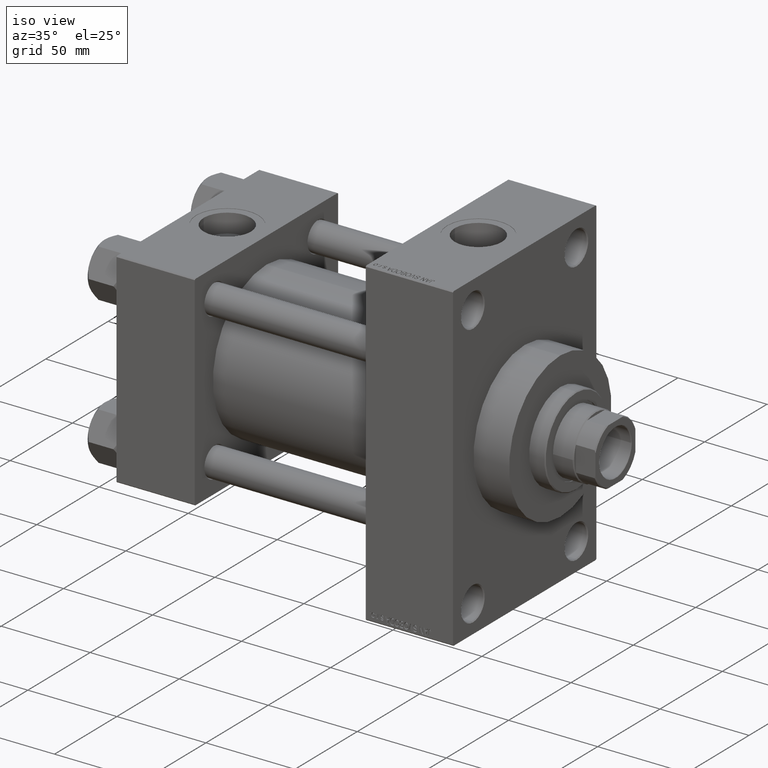
[diagram: clean part render]
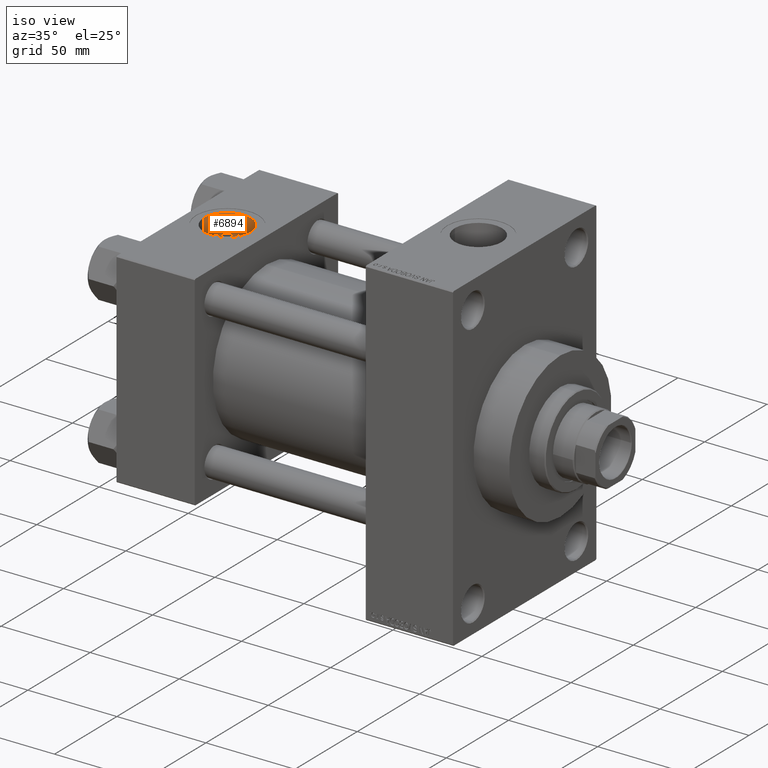
[diagram: same view with one face highlighted and labeled with its STEP entity id]
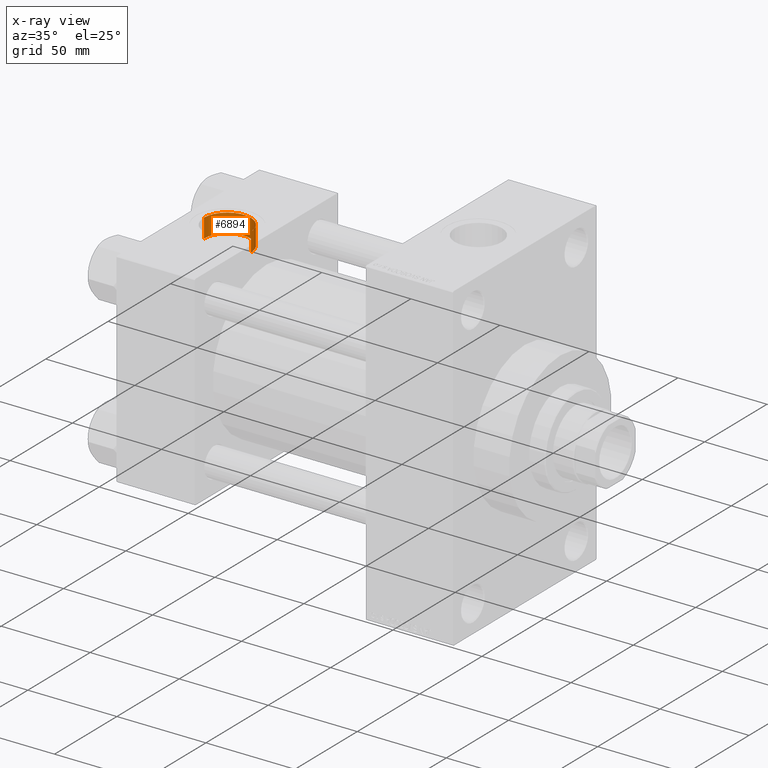
[diagram: x-ray of the same camera — body ghosted, the highlighted face saturated]
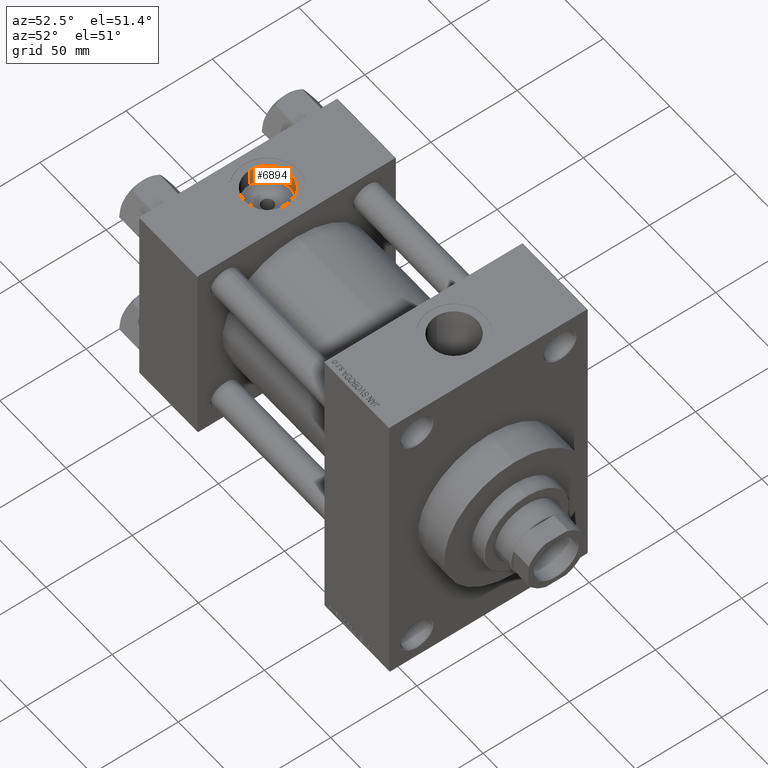
[diagram: same view with one face highlighted and labeled with its STEP entity id]
A machine part, iso view. The second image highlights one B-rep face of the part: STEP entity #6894.
The next image is the same camera in x-ray: the body ghosted, the highlighted face saturated — about 0% of this face is hidden behind the body in this view.
A second angle (auxiliary view) of the same face is appended — the face is thin or edge-on in the first view.
In plain terms, the highlighted cylindrical surface (edge-blend (fillet) strip) has radius 13.22 mm, axis along (0, 0, 1).
Its self-contained STEP definition (entity closure, byte-faithful):
#2120 = VERTEX_POINT ( 'NONE', #10709 ) ;
#2150 = CARTESIAN_POINT ( 'NONE',  ( 22.00000000000000000, -8.673617379884035472E-15, 57.30000000000000426 ) ) ;
#3839 = AXIS2_PLACEMENT_3D ( 'NONE', #13241, #9146, #27670 ) ;
#3860 = VECTOR ( 'NONE', #31137, 1000.000000000000000 ) ;
#6074 = CARTESIAN_POINT ( 'NONE',  ( 35.21999999999999886, -8.673617379884035472E-15, 57.30000000000000426 ) ) ;
#6894 = ADVANCED_FACE ( 'NONE', ( #23591 ), #38305, .F. ) ;
#6969 = CARTESIAN_POINT ( 'NONE',  ( 8.779999999999994031, -7.054634311411234321E-15, 46.70000000000000284 ) ) ;
#8496 = DIRECTION ( 'NONE',  ( -0.000000000000000000, -0.000000000000000000, 1.000000000000000000 ) ) ;
#9146 = DIRECTION ( 'NONE',  ( -0.000000000000000000, -0.000000000000000000, 1.000000000000000000 ) ) ;
#10341 = DIRECTION ( 'NONE',  ( 1.000000000000000000, 0.000000000000000000, 0.000000000000000000 ) ) ;
#10709 = CARTESIAN_POINT ( 'NONE',  ( 8.779999999999994031, -7.054634311411234321E-15, 57.30000000000000426 ) ) ;
#10802 = ORIENTED_EDGE ( 'NONE', *, *, #28803, .F. ) ;
#11058 = DIRECTION ( 'NONE',  ( 0.000000000000000000, 0.000000000000000000, 1.000000000000000000 ) ) ;
#12597 = LINE ( 'NONE', #16457, #3860 ) ;
#13241 = CARTESIAN_POINT ( 'NONE',  ( 22.00000000000000000, -8.673617379884035472E-15, 46.70000000000000284 ) ) ;
#15499 = CARTESIAN_POINT ( 'NONE',  ( 8.779999999999994031, -7.054634311411234321E-15, 46.70000000000000284 ) ) ;
#16457 = CARTESIAN_POINT ( 'NONE',  ( 35.21999999999999886, -8.673617379884035472E-15, 46.70000000000000284 ) ) ;
#16871 = DIRECTION ( 'NONE',  ( 0.000000000000000000, 0.000000000000000000, 1.000000000000000000 ) ) ;
#19093 = LINE ( 'NONE', #15499, #44380 ) ;
#20583 = AXIS2_PLACEMENT_3D ( 'NONE', #2150, #16871, #31554 ) ;
#23235 = VERTEX_POINT ( 'NONE', #6074 ) ;
#23591 = FACE_OUTER_BOUND ( 'NONE', #25100, .T. ) ;
#25100 = EDGE_LOOP ( 'NONE', ( #30331, #10802, #30697, #38526 ) ) ;
#25192 = VERTEX_POINT ( 'NONE', #34364 ) ;
#25964 = CIRCLE ( 'NONE', #20583, 13.22000000000000242 ) ;
#27478 = EDGE_CURVE ( 'NONE', #42952, #2120, #19093, .T. ) ;
#27486 = CIRCLE ( 'NONE', #30591, 13.22000000000000242 ) ;
#27670 = DIRECTION ( 'NONE',  ( 1.000000000000000000, 0.000000000000000000, 0.000000000000000000 ) ) ;
#28741 = EDGE_CURVE ( 'NONE', #23235, #2120, #25964, .T. ) ;
#28803 = EDGE_CURVE ( 'NONE', #25192, #42952, #27486, .T. ) ;
#30331 = ORIENTED_EDGE ( 'NONE', *, *, #27478, .F. ) ;
#30591 = AXIS2_PLACEMENT_3D ( 'NONE', #43824, #11058, #10341 ) ;
#30697 = ORIENTED_EDGE ( 'NONE', *, *, #41485, .T. ) ;
#31137 = DIRECTION ( 'NONE',  ( -0.000000000000000000, -0.000000000000000000, 1.000000000000000000 ) ) ;
#31554 = DIRECTION ( 'NONE',  ( 1.000000000000000000, 0.000000000000000000, 0.000000000000000000 ) ) ;
#34364 = CARTESIAN_POINT ( 'NONE',  ( 35.21999999999999886, -8.673617379884035472E-15, 46.70000000000000284 ) ) ;
#38305 = CYLINDRICAL_SURFACE ( 'NONE', #3839, 13.22000000000000242 ) ;
#38526 = ORIENTED_EDGE ( 'NONE', *, *, #28741, .T. ) ;
#41485 = EDGE_CURVE ( 'NONE', #25192, #23235, #12597, .T. ) ;
#42952 = VERTEX_POINT ( 'NONE', #6969 ) ;
#43824 = CARTESIAN_POINT ( 'NONE',  ( 22.00000000000000000, -8.673617379884035472E-15, 46.70000000000000284 ) ) ;
#44380 = VECTOR ( 'NONE', #8496, 1000.000000000000000 ) ;